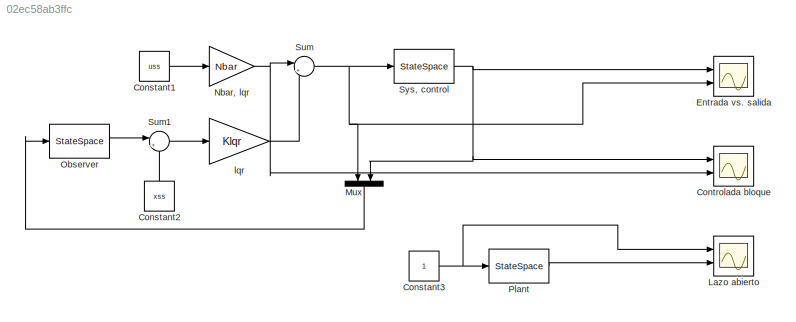
MODEL slx_02ec58ab3ffc
KIND model
CONFIG AbsTol = auto
CONFIG EnableMultiTasking = off
CONFIG FixedStep = auto
CONFIG MaxStep = auto
CONFIG MinStep = auto
CONFIG RelTol = 1e-3
CONFIG SampleTimeConstraint = Unconstrained
CONFIG SolverName = VariableStepAuto
CONFIG StartTime = 0.0
CONFIG StopTime = 0.1
BLOCK [Constant] Constant1
  Value = uss
BLOCK [Constant] Constant2
  NameLocation = right
  Value = xss
BLOCK [Constant] Constant3
BLOCK [Scope] Controlada bloque
  Floating = off
  NumInputPorts = 2
  Ports = [2]
  ScopeSpecificationString = Simulink.scopes.TimeScopeBlockCfg('CurrentConfiguration', extmgr.ConfigurationSet(extmgr.Configuration('Core','General UI',true),extmgr.Configuration('Core','Source UI',true),extmgr.Configuration('Sources','WiredSimulink',true,'DataLoggingVariableName','ScopeData2'),extmgr.Configuration('Visuals','Time Domain',true,'SerializedDisplays',{struct('MinYLimReal','-0.10957','MaxYLimReal','0.98613','YLab...<+1383ch>
BLOCK [Scope] Entrada vs. salida
  Floating = off
  NumInputPorts = 2
  Ports = [2]
  ScopeSpecificationString = Simulink.scopes.TimeScopeBlockCfg('CurrentConfiguration', extmgr.ConfigurationSet(extmgr.Configuration('Core','General UI',true),extmgr.Configuration('Core','Source UI',true),extmgr.Configuration('Sources','WiredSimulink',true,'DataLoggingVariableName','ScopeData1'),extmgr.Configuration('Visuals','Time Domain',true,'SerializedDisplays',{struct('MinYLimReal','-0.39539','MaxYLimReal','3.55855','YLab...<+1412ch>
BLOCK [Scope] Lazo abierto
  Floating = off
  NumInputPorts = 2
  Ports = [2]
  ScopeSpecificationString = Simulink.scopes.TimeScopeBlockCfg('CurrentConfiguration', extmgr.ConfigurationSet(extmgr.Configuration('Core','General UI',true),extmgr.Configuration('Core','Source UI',true),extmgr.Configuration('Sources','WiredSimulink',true),extmgr.Configuration('Visuals','Time Domain',true,'SerializedDisplays',{struct('MinYLimReal','-0.80579','MaxYLimReal','7.25215','YLabelReal','','MinYLimMag','0.00000','MaxY...<+1337ch>
BLOCK [Mux] Mux
  DisplayOption = bar
  Inputs = 2
  NameLocation = left
  Ports = [2, 1]
BLOCK [Gain] Nbar, lqr
  Gain = Nbar
BLOCK [StateSpace] Observer
  A = A_obs
  B = B_obs
  C = C_obs
  D = D_obs
  InitialCondition = 0
  Ports = [1, 1]
BLOCK [StateSpace] Plant
  A = A
  B = B
  C = C
  D = D
  InitialCondition = 0
  Ports = [1, 1]
BLOCK [Sum] Sum
  Inputs = |+-
  Ports = [2, 1]
BLOCK [Sum] Sum1
  Inputs = |+-
  Ports = [2, 1]
BLOCK [StateSpace] Sys, control
  A = Acl
  B = B
  C = C
  D = 0
  InitialCondition = 0
  Ports = [1, 1]
BLOCK [Gain] lqr
  Gain = Klqr
  Multiplication = Matrix(K*u) (u vector)
LINE Constant1:1 -> Nbar, lqr:1
LINE Constant2:1 -> Sum1:2
NET Constant3:1 -> Lazo abierto:1, Plant:1
LINE Mux:1 -> Observer:1
NET Nbar, lqr:1 -> Controlada bloque:2, Sum:1
LINE Observer:1 -> Sum1:1
LINE Plant:1 -> Lazo abierto:2
LINE Sum1:1 -> lqr:1
NET Sum:1 -> Entrada vs. salida:2, Mux:1, Sys, control:1
NET Sys, control:1 -> Controlada bloque:1, Entrada vs. salida:1, Mux:2
LINE lqr:1 -> Sum:2
note: NET lines group one-source signal fan-out (src -> all destinations, sorted); 1:1 wires keep LINE
